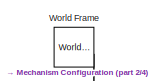
[diagram: root canvas - part 1/4, top left region]
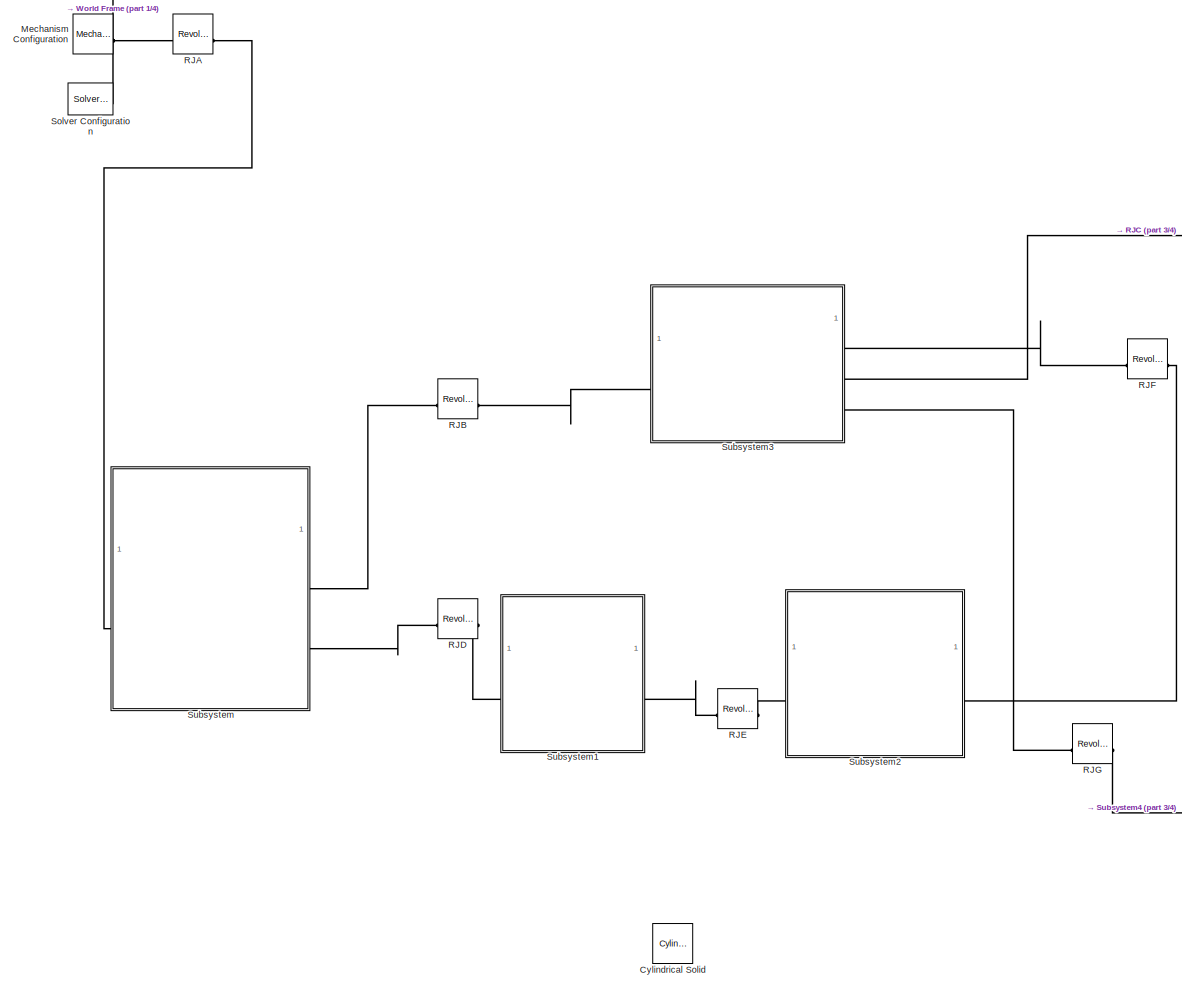
[diagram: root canvas - part 2/4, left side, full height]
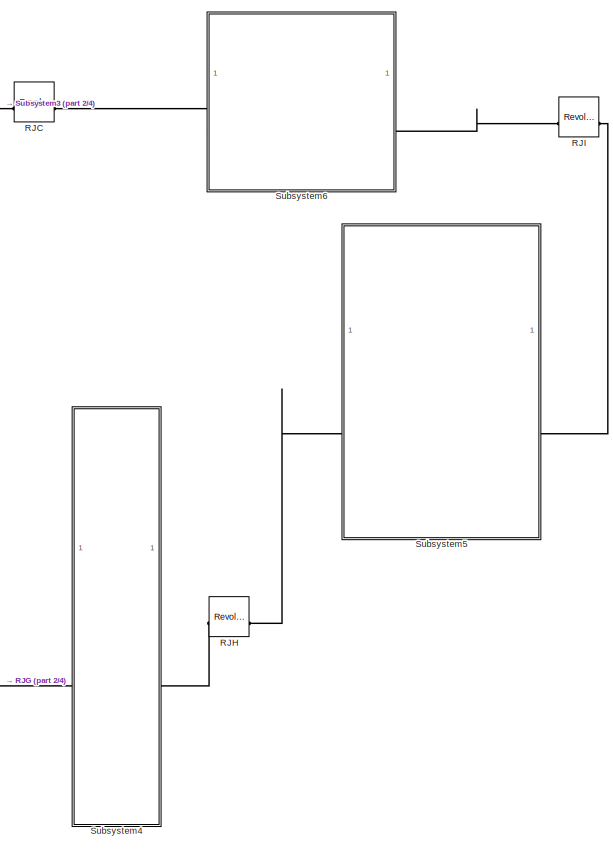
[diagram: root canvas - part 3/4, middle right region]
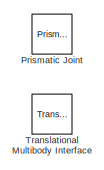
[diagram: root canvas - part 4/4, bottom center region]
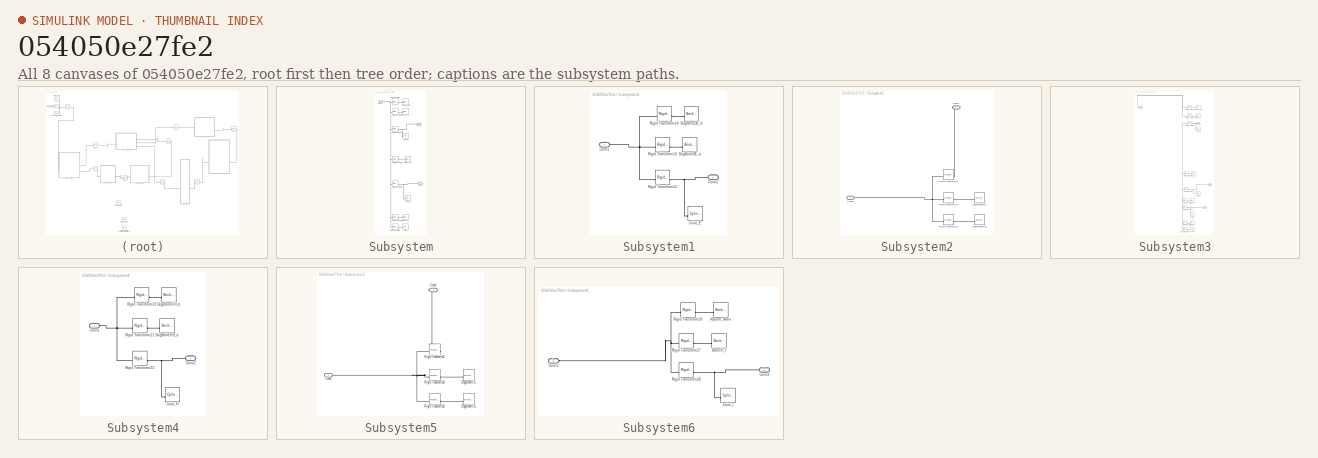
[diagram: thumbnail index - all 8 canvases of the model, root first then tree order]
MODEL slx_054050e27fe2
KIND model
CONFIG AbsTol = auto
CONFIG EnableMultiTasking = off
CONFIG FixedStep = auto
CONFIG MaxStep = auto
CONFIG MinStep = auto
CONFIG RelTol = 1e-4
CONFIG SampleTimeConstraint = Unconstrained
CONFIG SolverName = VariableStepAuto
CONFIG StartTime = 0.0
CONFIG StopTime = 0.5
WORKSPACE source: MATLAB code (in-file)
WORKSPACE w0 = 0.07
WORKSPACE w1 = w0/4  (= 0.0175)
WORKSPACE l_RJ = 2.1*w0  (= 0.147)
WORKSPACE L_Column = 2
WORKSPACE eta_B = -0.25
WORKSPACE zeta_B = L_Column  (= 2)
WORKSPACE eta_D = 0.25
WORKSPACE zeta_D = 1.5
WORKSPACE eta_J = 0.25
WORKSPACE zeta_J = 0.25
WORKSPACE l_DE = 0.5
WORKSPACE l_FE = 0.4
WORKSPACE L_Mboom = 2
WORKSPACE eta_C = 2
WORKSPACE zeta_C = 0.25
WORKSPACE eta_F = 0.6
WORKSPACE zeta_F = -0.25
WORKSPACE eta_G = 1.75
WORKSPACE zeta_G = -0.25
WORKSPACE eta_K = 1
WORKSPACE zeta_K = -0.25
WORKSPACE l_GH = 0.5
WORKSPACE l_IH = 0.4
WORKSPACE L_Kboom = 2
WORKSPACE eta_I = 0.5
WORKSPACE zeta_I = -0.25
WORKSPACE eta_TP = L_Kboom  (= 2)
WORKSPACE zeta_TP = 0
WORKSPACE D_piston_mc = 160
WORKSPACE L_piston_mc = 66.2
WORKSPACE D_rod_mc = 100
WORKSPACE L_rod_mac = 990
WORKSPACE A_piston_mc = pi/4*D_piston_mc^2  (= 20106.192983)
WORKSPACE A_rod_mc = pi/4*D_rod_mc^2  (= 7853.98163397)
WORKSPACE A_rodside_mc = A_piston_mc-A_rod_mc  (= 12252.211349)
BLOCK [Reference] Cylindrical Solid  REF=sm_lib/Body Elements/Cylindrical Solid
  SourceBlock = sm_lib/Body Elements/Cylindrical Solid
  SourceType = Cylindrical Solid
BLOCK [Reference] Mechanism Configuration  REF=sm_lib/Utilities/Mechanism
Configuration
  SourceBlock = sm_lib/Utilities/Mechanism\nConfiguration
  SourceType = Mechanism\nConfiguration
BLOCK [Reference] Prismatic Joint  REF=sm_lib/Joints/Prismatic
Joint
  SourceBlock = sm_lib/Joints/Prismatic\nJoint
  SourceType = Prismatic\nJoint
BLOCK [Reference] RJA  REF=sm_lib/Joints/Revolute Joint
  SourceBlock = sm_lib/Joints/Revolute Joint
  SourceType = Revolute Joint
BLOCK [Reference] RJB  REF=sm_lib/Joints/Revolute Joint
  SourceBlock = sm_lib/Joints/Revolute Joint
  SourceType = Revolute Joint
BLOCK [Reference] RJC  REF=sm_lib/Joints/Revolute Joint
  SourceBlock = sm_lib/Joints/Revolute Joint
  SourceType = Revolute Joint
BLOCK [Reference] RJD  REF=sm_lib/Joints/Revolute Joint
  SourceBlock = sm_lib/Joints/Revolute Joint
  SourceType = Revolute Joint
BLOCK [Reference] RJE  REF=sm_lib/Joints/Revolute Joint
  SourceBlock = sm_lib/Joints/Revolute Joint
  SourceType = Revolute Joint
BLOCK [Reference] RJF  REF=sm_lib/Joints/Revolute Joint
  SourceBlock = sm_lib/Joints/Revolute Joint
  SourceType = Revolute Joint
BLOCK [Reference] RJG  REF=sm_lib/Joints/Revolute Joint
  SourceBlock = sm_lib/Joints/Revolute Joint
  SourceType = Revolute Joint
BLOCK [Reference] RJH  REF=sm_lib/Joints/Revolute Joint
  SourceBlock = sm_lib/Joints/Revolute Joint
  SourceType = Revolute Joint
BLOCK [Reference] RJI  REF=sm_lib/Joints/Revolute Joint
  SourceBlock = sm_lib/Joints/Revolute Joint
  SourceType = Revolute Joint
BLOCK [Reference] Solver Configuration  REF=nesl_utility/Solver
Configuration
  SourceBlock = nesl_utility/Solver\nConfiguration
  SourceType = Solver\nConfiguration
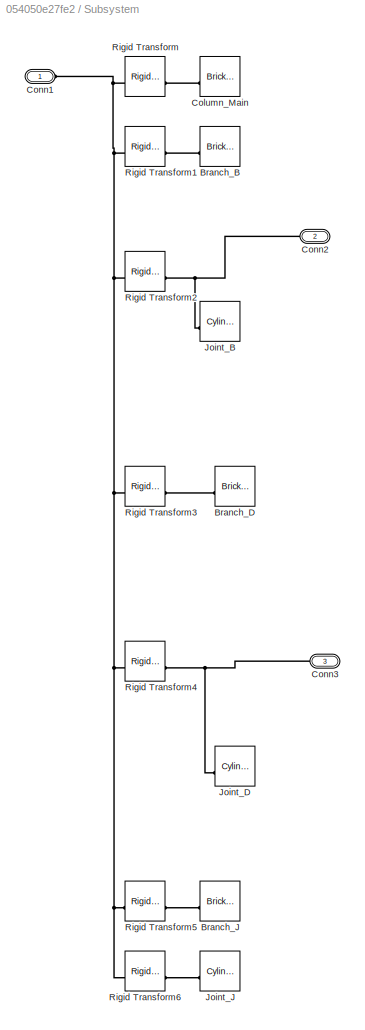
BLOCK [SubSystem] Subsystem
BLOCK [Reference] Subsystem/Branch_B  REF=sm_lib/Body Elements/Brick Solid
  SourceBlock = sm_lib/Body Elements/Brick Solid
  SourceType = Brick Solid
BLOCK [Reference] Subsystem/Branch_D  REF=sm_lib/Body Elements/Brick Solid
  SourceBlock = sm_lib/Body Elements/Brick Solid
  SourceType = Brick Solid
BLOCK [Reference] Subsystem/Branch_J  REF=sm_lib/Body Elements/Brick Solid
  SourceBlock = sm_lib/Body Elements/Brick Solid
  SourceType = Brick Solid
BLOCK [Reference] Subsystem/Column_Main  REF=sm_lib/Body Elements/Brick Solid
  SourceBlock = sm_lib/Body Elements/Brick Solid
  SourceType = Brick Solid
BLOCK [PMIOPort] Subsystem/Conn1
  Side = Left
BLOCK [PMIOPort] Subsystem/Conn2
  Port = 2
  Side = Right
BLOCK [PMIOPort] Subsystem/Conn3
  Port = 3
  Side = Right
BLOCK [Reference] Subsystem/Joint_B  REF=sm_lib/Body Elements/Cylindrical Solid
  SourceBlock = sm_lib/Body Elements/Cylindrical Solid
  SourceType = Cylindrical Solid
BLOCK [Reference] Subsystem/Joint_D  REF=sm_lib/Body Elements/Cylindrical Solid
  SourceBlock = sm_lib/Body Elements/Cylindrical Solid
  SourceType = Cylindrical Solid
BLOCK [Reference] Subsystem/Joint_J  REF=sm_lib/Body Elements/Cylindrical Solid
  SourceBlock = sm_lib/Body Elements/Cylindrical Solid
  SourceType = Cylindrical Solid
BLOCK [Reference] Subsystem/Rigid Transform  REF=sm_lib/Frames and
Transforms/Rigid
Transform
  SourceBlock = sm_lib/Frames and\nTransforms/Rigid\nTransform
  SourceType = Rigid\nTransform
BLOCK [Reference] Subsystem/Rigid Transform1  REF=sm_lib/Frames and
Transforms/Rigid
Transform
  SourceBlock = sm_lib/Frames and\nTransforms/Rigid\nTransform
  SourceType = Rigid\nTransform
BLOCK [Reference] Subsystem/Rigid Transform2  REF=sm_lib/Frames and
Transforms/Rigid
Transform
  SourceBlock = sm_lib/Frames and\nTransforms/Rigid\nTransform
  SourceType = Rigid\nTransform
BLOCK [Reference] Subsystem/Rigid Transform3  REF=sm_lib/Frames and
Transforms/Rigid
Transform
  SourceBlock = sm_lib/Frames and\nTransforms/Rigid\nTransform
  SourceType = Rigid\nTransform
BLOCK [Reference] Subsystem/Rigid Transform4  REF=sm_lib/Frames and
Transforms/Rigid
Transform
  SourceBlock = sm_lib/Frames and\nTransforms/Rigid\nTransform
  SourceType = Rigid\nTransform
BLOCK [Reference] Subsystem/Rigid Transform5  REF=sm_lib/Frames and
Transforms/Rigid
Transform
  SourceBlock = sm_lib/Frames and\nTransforms/Rigid\nTransform
  SourceType = Rigid\nTransform
BLOCK [Reference] Subsystem/Rigid Transform6  REF=sm_lib/Frames and
Transforms/Rigid
Transform
  SourceBlock = sm_lib/Frames and\nTransforms/Rigid\nTransform
  SourceType = Rigid\nTransform
BLOCK [SubSystem] Subsystem1
BLOCK [PMIOPort] Subsystem1/Conn1
  Side = Left
BLOCK [PMIOPort] Subsystem1/Conn2
  Port = 2
  Side = Right
BLOCK [Reference] Subsystem1/DogBoneDE_a  REF=sm_lib/Body Elements/Brick Solid
  SourceBlock = sm_lib/Body Elements/Brick Solid
  SourceType = Brick Solid
BLOCK [Reference] Subsystem1/DogBoneDE_b  REF=sm_lib/Body Elements/Brick Solid
  SourceBlock = sm_lib/Body Elements/Brick Solid
  SourceType = Brick Solid
BLOCK [Reference] Subsystem1/Joint_E  REF=sm_lib/Body Elements/Cylindrical Solid
  SourceBlock = sm_lib/Body Elements/Cylindrical Solid
  SourceType = Cylindrical Solid
BLOCK [Reference] Subsystem1/Rigid Transform10  REF=sm_lib/Frames and
Transforms/Rigid
Transform
  SourceBlock = sm_lib/Frames and\nTransforms/Rigid\nTransform
  SourceType = Rigid\nTransform
BLOCK [Reference] Subsystem1/Rigid Transform12  REF=sm_lib/Frames and
Transforms/Rigid
Transform
  SourceBlock = sm_lib/Frames and\nTransforms/Rigid\nTransform
  SourceType = Rigid\nTransform
BLOCK [Reference] Subsystem1/Rigid Transform14  REF=sm_lib/Frames and
Transforms/Rigid
Transform
  SourceBlock = sm_lib/Frames and\nTransforms/Rigid\nTransform
  SourceType = Rigid\nTransform
BLOCK [SubSystem] Subsystem2
BLOCK [PMIOPort] Subsystem2/Conn1
  Side = Right
BLOCK [PMIOPort] Subsystem2/Conn2
  Port = 2
  Side = Left
BLOCK [Reference] Subsystem2/DogBoneEF_a  REF=sm_lib/Body Elements/Brick Solid
  SourceBlock = sm_lib/Body Elements/Brick Solid
  SourceType = Brick Solid
BLOCK [Reference] Subsystem2/DogBoneEF_b  REF=sm_lib/Body Elements/Brick Solid
  SourceBlock = sm_lib/Body Elements/Brick Solid
  SourceType = Brick Solid
BLOCK [Reference] Subsystem2/Rigid Transform11  REF=sm_lib/Frames and
Transforms/Rigid
Transform
  SourceBlock = sm_lib/Frames and\nTransforms/Rigid\nTransform
  SourceType = Rigid\nTransform
BLOCK [Reference] Subsystem2/Rigid Transform13  REF=sm_lib/Frames and
Transforms/Rigid
Transform
  SourceBlock = sm_lib/Frames and\nTransforms/Rigid\nTransform
  SourceType = Rigid\nTransform
BLOCK [Reference] Subsystem2/Rigid Transform15  REF=sm_lib/Frames and
Transforms/Rigid
Transform
  SourceBlock = sm_lib/Frames and\nTransforms/Rigid\nTransform
  SourceType = Rigid\nTransform
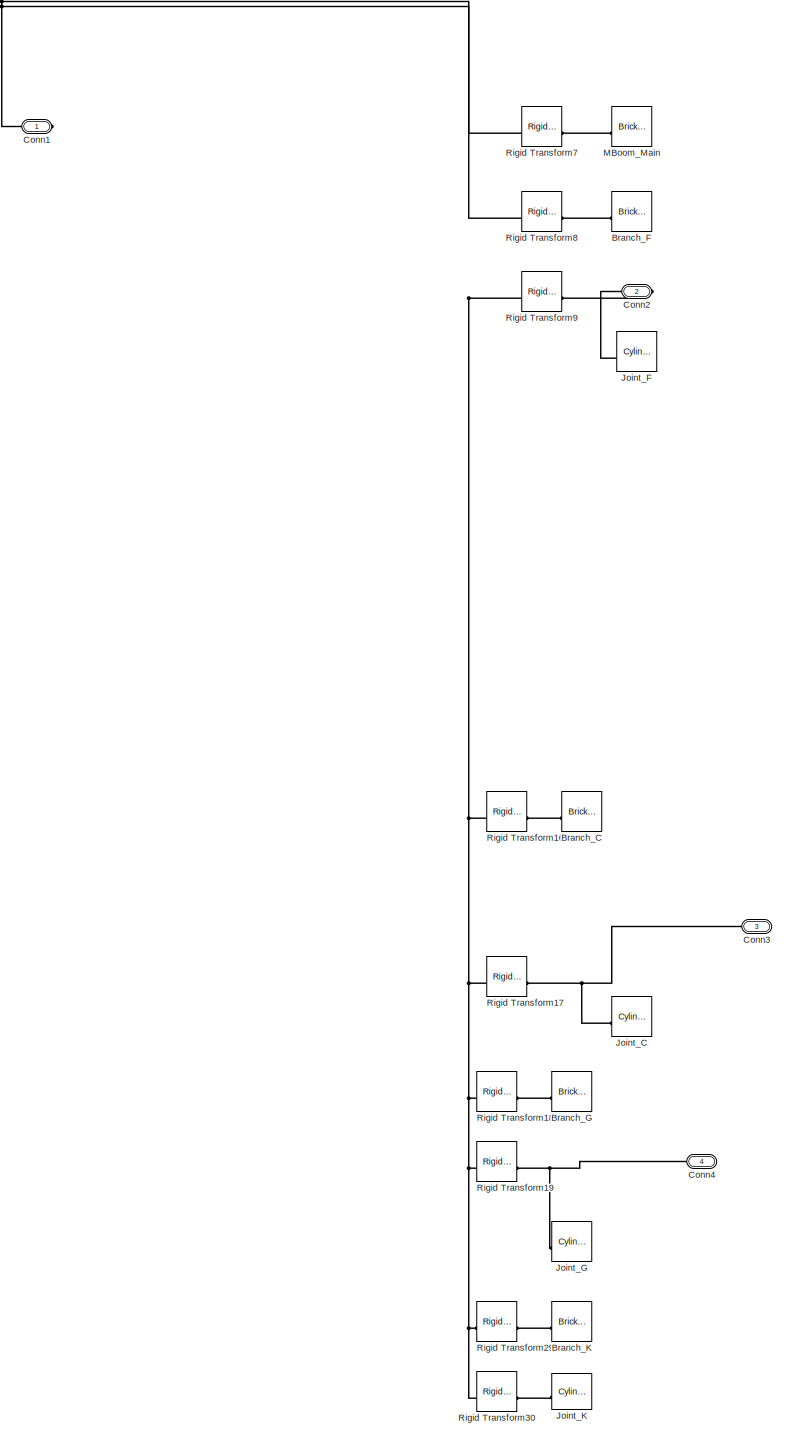
[diagram: Subsystem3 - part 1/1, most of the canvas]
BLOCK [SubSystem] Subsystem3
BLOCK [Reference] Subsystem3/Branch_C  REF=sm_lib/Body Elements/Brick Solid
  SourceBlock = sm_lib/Body Elements/Brick Solid
  SourceType = Brick Solid
BLOCK [Reference] Subsystem3/Branch_F  REF=sm_lib/Body Elements/Brick Solid
  SourceBlock = sm_lib/Body Elements/Brick Solid
  SourceType = Brick Solid
BLOCK [Reference] Subsystem3/Branch_G  REF=sm_lib/Body Elements/Brick Solid
  SourceBlock = sm_lib/Body Elements/Brick Solid
  SourceType = Brick Solid
BLOCK [Reference] Subsystem3/Branch_K  REF=sm_lib/Body Elements/Brick Solid
  SourceBlock = sm_lib/Body Elements/Brick Solid
  SourceType = Brick Solid
BLOCK [PMIOPort] Subsystem3/Conn1
  Side = Left
BLOCK [PMIOPort] Subsystem3/Conn2
  Port = 2
  Side = Right
BLOCK [PMIOPort] Subsystem3/Conn3
  Port = 3
  Side = Right
BLOCK [PMIOPort] Subsystem3/Conn4
  Port = 4
  Side = Right
BLOCK [Reference] Subsystem3/Joint_C  REF=sm_lib/Body Elements/Cylindrical Solid
  SourceBlock = sm_lib/Body Elements/Cylindrical Solid
  SourceType = Cylindrical Solid
BLOCK [Reference] Subsystem3/Joint_F  REF=sm_lib/Body Elements/Cylindrical Solid
  SourceBlock = sm_lib/Body Elements/Cylindrical Solid
  SourceType = Cylindrical Solid
BLOCK [Reference] Subsystem3/Joint_G  REF=sm_lib/Body Elements/Cylindrical Solid
  SourceBlock = sm_lib/Body Elements/Cylindrical Solid
  SourceType = Cylindrical Solid
BLOCK [Reference] Subsystem3/Joint_K  REF=sm_lib/Body Elements/Cylindrical Solid
  SourceBlock = sm_lib/Body Elements/Cylindrical Solid
  SourceType = Cylindrical Solid
BLOCK [Reference] Subsystem3/MBoom_Main  REF=sm_lib/Body Elements/Brick Solid
  SourceBlock = sm_lib/Body Elements/Brick Solid
  SourceType = Brick Solid
BLOCK [Reference] Subsystem3/Rigid Transform16  REF=sm_lib/Frames and
Transforms/Rigid
Transform
  SourceBlock = sm_lib/Frames and\nTransforms/Rigid\nTransform
  SourceType = Rigid\nTransform
BLOCK [Reference] Subsystem3/Rigid Transform17  REF=sm_lib/Frames and
Transforms/Rigid
Transform
  SourceBlock = sm_lib/Frames and\nTransforms/Rigid\nTransform
  SourceType = Rigid\nTransform
BLOCK [Reference] Subsystem3/Rigid Transform18  REF=sm_lib/Frames and
Transforms/Rigid
Transform
  SourceBlock = sm_lib/Frames and\nTransforms/Rigid\nTransform
  SourceType = Rigid\nTransform
BLOCK [Reference] Subsystem3/Rigid Transform19  REF=sm_lib/Frames and
Transforms/Rigid
Transform
  SourceBlock = sm_lib/Frames and\nTransforms/Rigid\nTransform
  SourceType = Rigid\nTransform
BLOCK [Reference] Subsystem3/Rigid Transform29  REF=sm_lib/Frames and
Transforms/Rigid
Transform
  SourceBlock = sm_lib/Frames and\nTransforms/Rigid\nTransform
  SourceType = Rigid\nTransform
BLOCK [Reference] Subsystem3/Rigid Transform30  REF=sm_lib/Frames and
Transforms/Rigid
Transform
  SourceBlock = sm_lib/Frames and\nTransforms/Rigid\nTransform
  SourceType = Rigid\nTransform
BLOCK [Reference] Subsystem3/Rigid Transform7  REF=sm_lib/Frames and
Transforms/Rigid
Transform
  SourceBlock = sm_lib/Frames and\nTransforms/Rigid\nTransform
  SourceType = Rigid\nTransform
BLOCK [Reference] Subsystem3/Rigid Transform8  REF=sm_lib/Frames and
Transforms/Rigid
Transform
  SourceBlock = sm_lib/Frames and\nTransforms/Rigid\nTransform
  SourceType = Rigid\nTransform
BLOCK [Reference] Subsystem3/Rigid Transform9  REF=sm_lib/Frames and
Transforms/Rigid
Transform
  SourceBlock = sm_lib/Frames and\nTransforms/Rigid\nTransform
  SourceType = Rigid\nTransform
BLOCK [SubSystem] Subsystem4
BLOCK [PMIOPort] Subsystem4/Conn1
  Side = Left
BLOCK [PMIOPort] Subsystem4/Conn2
  Port = 2
  Side = Right
BLOCK [Reference] Subsystem4/DogBoneGH_a  REF=sm_lib/Body Elements/Brick Solid
  SourceBlock = sm_lib/Body Elements/Brick Solid
  SourceType = Brick Solid
BLOCK [Reference] Subsystem4/DogBoneGH_b  REF=sm_lib/Body Elements/Brick Solid
  SourceBlock = sm_lib/Body Elements/Brick Solid
  SourceType = Brick Solid
BLOCK [Reference] Subsystem4/Joint_H  REF=sm_lib/Body Elements/Cylindrical Solid
  SourceBlock = sm_lib/Body Elements/Cylindrical Solid
  SourceType = Cylindrical Solid
BLOCK [Reference] Subsystem4/Rigid Transform21  REF=sm_lib/Frames and
Transforms/Rigid
Transform
  SourceBlock = sm_lib/Frames and\nTransforms/Rigid\nTransform
  SourceType = Rigid\nTransform
BLOCK [Reference] Subsystem4/Rigid Transform22  REF=sm_lib/Frames and
Transforms/Rigid
Transform
  SourceBlock = sm_lib/Frames and\nTransforms/Rigid\nTransform
  SourceType = Rigid\nTransform
BLOCK [Reference] Subsystem4/Rigid Transform23  REF=sm_lib/Frames and
Transforms/Rigid
Transform
  SourceBlock = sm_lib/Frames and\nTransforms/Rigid\nTransform
  SourceType = Rigid\nTransform
BLOCK [SubSystem] Subsystem5
BLOCK [PMIOPort] Subsystem5/Conn1
  Side = Right
BLOCK [PMIOPort] Subsystem5/Conn2
  Port = 2
  Side = Left
BLOCK [Reference] Subsystem5/DogBoneHI_a  REF=sm_lib/Body Elements/Brick Solid
  SourceBlock = sm_lib/Body Elements/Brick Solid
  SourceType = Brick Solid
BLOCK [Reference] Subsystem5/DogBoneHI_b  REF=sm_lib/Body Elements/Brick Solid
  SourceBlock = sm_lib/Body Elements/Brick Solid
  SourceType = Brick Solid
BLOCK [Reference] Subsystem5/Rigid Transform24  REF=sm_lib/Frames and
Transforms/Rigid
Transform
  SourceBlock = sm_lib/Frames and\nTransforms/Rigid\nTransform
  SourceType = Rigid\nTransform
BLOCK [Reference] Subsystem5/Rigid Transform25  REF=sm_lib/Frames and
Transforms/Rigid
Transform
  SourceBlock = sm_lib/Frames and\nTransforms/Rigid\nTransform
  SourceType = Rigid\nTransform
BLOCK [Reference] Subsystem5/Rigid Transform26  REF=sm_lib/Frames and
Transforms/Rigid
Transform
  SourceBlock = sm_lib/Frames and\nTransforms/Rigid\nTransform
  SourceType = Rigid\nTransform
BLOCK [SubSystem] Subsystem6
BLOCK [Reference] Subsystem6/Branch_I  REF=sm_lib/Body Elements/Brick Solid
  SourceBlock = sm_lib/Body Elements/Brick Solid
  SourceType = Brick Solid
BLOCK [PMIOPort] Subsystem6/Conn1
  Side = Left
BLOCK [PMIOPort] Subsystem6/Conn2
  Port = 2
  Side = Right
BLOCK [Reference] Subsystem6/Joint_I  REF=sm_lib/Body Elements/Cylindrical Solid
  SourceBlock = sm_lib/Body Elements/Cylindrical Solid
  SourceType = Cylindrical Solid
BLOCK [Reference] Subsystem6/KBoom_Main  REF=sm_lib/Body Elements/Brick Solid
  SourceBlock = sm_lib/Body Elements/Brick Solid
  SourceType = Brick Solid
BLOCK [Reference] Subsystem6/Rigid Transform20  REF=sm_lib/Frames and
Transforms/Rigid
Transform
  SourceBlock = sm_lib/Frames and\nTransforms/Rigid\nTransform
  SourceType = Rigid\nTransform
BLOCK [Reference] Subsystem6/Rigid Transform27  REF=sm_lib/Frames and
Transforms/Rigid
Transform
  SourceBlock = sm_lib/Frames and\nTransforms/Rigid\nTransform
  SourceType = Rigid\nTransform
BLOCK [Reference] Subsystem6/Rigid Transform28  REF=sm_lib/Frames and
Transforms/Rigid
Transform
  SourceBlock = sm_lib/Frames and\nTransforms/Rigid\nTransform
  SourceType = Rigid\nTransform
BLOCK [Reference] Translational Multibody Interface  REF=fl_lib/Mechanical/Multibody Interfaces/Translational
Multibody Interface
  SourceBlock = fl_lib/Mechanical/Multibody Interfaces/Translational\nMultibody Interface
  SourceType = Translational\nMultibody Interface
BLOCK [Reference] World Frame  REF=sm_lib/Frames and
Transforms/World Frame
  SourceBlock = sm_lib/Frames and\nTransforms/World Frame
  SourceType = World Frame
PNET net1: Mechanism Configuration:RConn1 -- RJA:LConn1 -- Solver Configuration:RConn1 -- World Frame:RConn1
PLINE RJA:RConn1 -- Subsystem:LConn1
PLINE RJB:LConn1 -- Subsystem:RConn1
PLINE RJB:RConn1 -- Subsystem3:LConn1
PLINE RJC:LConn1 -- Subsystem3:RConn2
PLINE RJC:RConn1 -- Subsystem6:LConn1
PLINE RJD:LConn1 -- Subsystem:RConn2
PLINE RJD:RConn1 -- Subsystem1:LConn1
PLINE RJE:LConn1 -- Subsystem1:RConn1
PLINE RJE:RConn1 -- Subsystem2:LConn1
PLINE RJF:LConn1 -- Subsystem3:RConn1
PLINE RJF:RConn1 -- Subsystem2:RConn1
PLINE RJG:LConn1 -- Subsystem3:RConn3
PLINE RJG:RConn1 -- Subsystem4:LConn1
PLINE RJH:LConn1 -- Subsystem4:RConn1
PLINE RJH:RConn1 -- Subsystem5:LConn1
PLINE RJI:LConn1 -- Subsystem6:RConn1
PLINE RJI:RConn1 -- Subsystem5:RConn1
PLINE Subsystem/Branch_B:RConn1 -- Subsystem/Rigid Transform1:RConn1
PLINE Subsystem/Branch_D:RConn1 -- Subsystem/Rigid Transform3:RConn1
PLINE Subsystem/Branch_J:RConn1 -- Subsystem/Rigid Transform5:RConn1
PLINE Subsystem/Column_Main:RConn1 -- Subsystem/Rigid Transform:RConn1
PNET net2: Subsystem/Conn1:RConn1 -- Subsystem/Rigid Transform1:LConn1 -- Subsystem/Rigid Transform2:LConn1 -- Subsystem/Rigid Transform3:LConn1 -- Subsystem/Rigid Transform4:LConn1 -- Subsystem/Rigid Transform5:LConn1 -- Subsystem/Rigid Transform6:LConn1 -- Subsystem/Rigid Transform:LConn1
PNET net3: Subsystem/Conn2:RConn1 -- Subsystem/Joint_B:RConn1 -- Subsystem/Rigid Transform2:RConn1
PNET net4: Subsystem/Conn3:RConn1 -- Subsystem/Joint_D:RConn1 -- Subsystem/Rigid Transform4:RConn1
PLINE Subsystem/Joint_J:RConn1 -- Subsystem/Rigid Transform6:RConn1
PNET net5: Subsystem1/Conn1:RConn1 -- Subsystem1/Rigid Transform10:LConn1 -- Subsystem1/Rigid Transform12:LConn1 -- Subsystem1/Rigid Transform14:LConn1
PNET net6: Subsystem1/Conn2:RConn1 -- Subsystem1/Joint_E:RConn1 -- Subsystem1/Rigid Transform12:RConn1
PLINE Subsystem1/DogBoneDE_a:RConn1 -- Subsystem1/Rigid Transform10:RConn1
PLINE Subsystem1/DogBoneDE_b:RConn1 -- Subsystem1/Rigid Transform14:RConn1
PLINE Subsystem2/Conn1:RConn1 -- Subsystem2/Rigid Transform13:RConn1
PNET net7: Subsystem2/Conn2:RConn1 -- Subsystem2/Rigid Transform11:LConn1 -- Subsystem2/Rigid Transform13:LConn1 -- Subsystem2/Rigid Transform15:LConn1
PLINE Subsystem2/DogBoneEF_a:RConn1 -- Subsystem2/Rigid Transform15:RConn1
PLINE Subsystem2/DogBoneEF_b:RConn1 -- Subsystem2/Rigid Transform11:RConn1
PLINE Subsystem3/Branch_C:RConn1 -- Subsystem3/Rigid Transform16:RConn1
PLINE Subsystem3/Branch_F:RConn1 -- Subsystem3/Rigid Transform8:RConn1
PLINE Subsystem3/Branch_G:RConn1 -- Subsystem3/Rigid Transform18:RConn1
PLINE Subsystem3/Branch_K:RConn1 -- Subsystem3/Rigid Transform29:RConn1
PNET net8: Subsystem3/Conn1:RConn1 -- Subsystem3/Rigid Transform16:LConn1 -- Subsystem3/Rigid Transform17:LConn1 -- Subsystem3/Rigid Transform18:LConn1 -- Subsystem3/Rigid Transform19:LConn1 -- Subsystem3/Rigid Transform29:LConn1 -- Subsystem3/Rigid Transform30:LConn1 -- Subsystem3/Rigid Transform7:LConn1 -- Subsystem3/Rigid Transform8:LConn1 -- Subsystem3/Rigid Transform9:LConn1
PNET net9: Subsystem3/Conn2:RConn1 -- Subsystem3/Joint_F:RConn1 -- Subsystem3/Rigid Transform9:RConn1
PNET net10: Subsystem3/Conn3:RConn1 -- Subsystem3/Joint_C:RConn1 -- Subsystem3/Rigid Transform17:RConn1
PNET net11: Subsystem3/Conn4:RConn1 -- Subsystem3/Joint_G:RConn1 -- Subsystem3/Rigid Transform19:RConn1
PLINE Subsystem3/Joint_K:RConn1 -- Subsystem3/Rigid Transform30:RConn1
PLINE Subsystem3/MBoom_Main:RConn1 -- Subsystem3/Rigid Transform7:RConn1
PNET net12: Subsystem4/Conn1:RConn1 -- Subsystem4/Rigid Transform21:LConn1 -- Subsystem4/Rigid Transform22:LConn1 -- Subsystem4/Rigid Transform23:LConn1
PNET net13: Subsystem4/Conn2:RConn1 -- Subsystem4/Joint_H:RConn1 -- Subsystem4/Rigid Transform22:RConn1
PLINE Subsystem4/DogBoneGH_a:RConn1 -- Subsystem4/Rigid Transform21:RConn1
PLINE Subsystem4/DogBoneGH_b:RConn1 -- Subsystem4/Rigid Transform23:RConn1
PLINE Subsystem5/Conn1:RConn1 -- Subsystem5/Rigid Transform25:RConn1
PNET net14: Subsystem5/Conn2:RConn1 -- Subsystem5/Rigid Transform24:LConn1 -- Subsystem5/Rigid Transform25:LConn1 -- Subsystem5/Rigid Transform26:LConn1
PLINE Subsystem5/DogBoneHI_a:RConn1 -- Subsystem5/Rigid Transform26:RConn1
PLINE Subsystem5/DogBoneHI_b:RConn1 -- Subsystem5/Rigid Transform24:RConn1
PLINE Subsystem6/Branch_I:RConn1 -- Subsystem6/Rigid Transform27:RConn1
PNET net15: Subsystem6/Conn1:RConn1 -- Subsystem6/Rigid Transform20:LConn1 -- Subsystem6/Rigid Transform27:LConn1 -- Subsystem6/Rigid Transform28:LConn1
PNET net16: Subsystem6/Conn2:RConn1 -- Subsystem6/Joint_I:RConn1 -- Subsystem6/Rigid Transform28:RConn1
PLINE Subsystem6/KBoom_Main:RConn1 -- Subsystem6/Rigid Transform20:RConn1
note: PNET lines group multi-terminal physical nets as a canonical sorted terminal list (undirected conserving connections); 2-terminal nets keep the pairwise PLINE form
